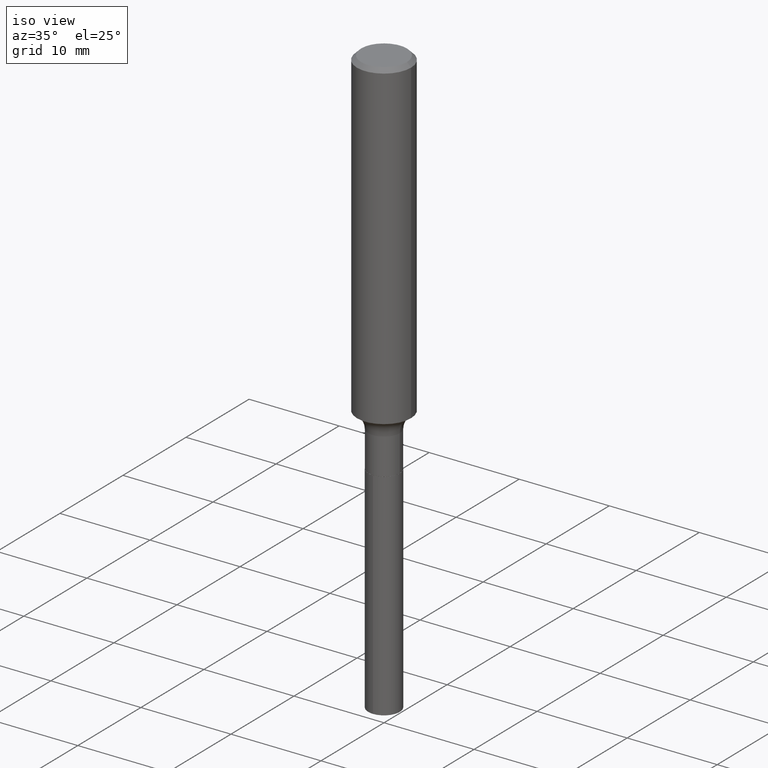
[diagram: clean part render]
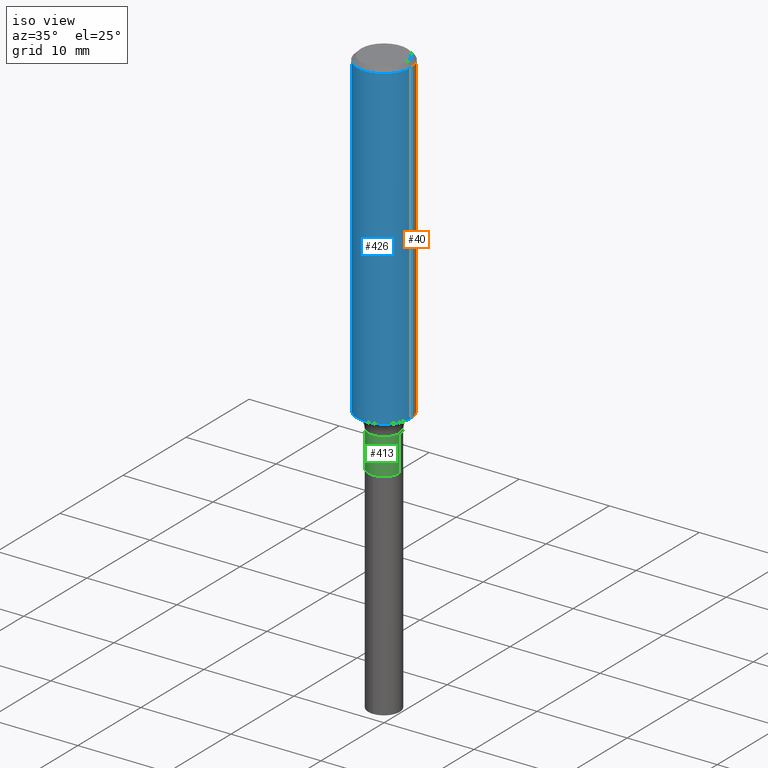
[diagram: same view with three faces highlighted in distinct colors, each labeled with its STEP entity id]
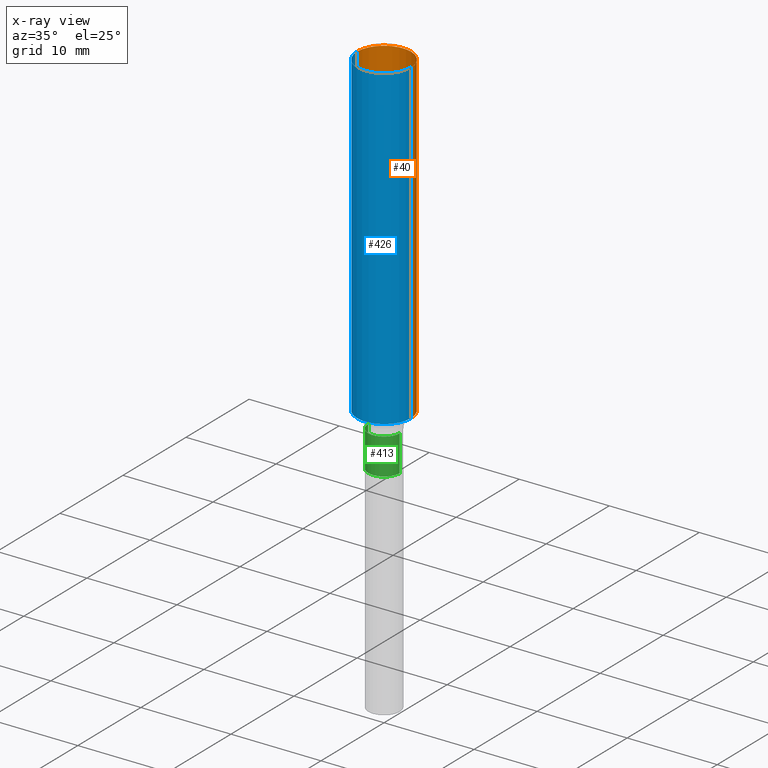
[diagram: x-ray of the same camera — body ghosted, the three highlighted faces saturated]
A machine part, iso view with three faces highlighted in distinct colors.
The next image is the same camera in x-ray (body ghosted, the three faces saturated) — at least one of them is partly hidden behind the body in this view.
Their STEP definitions:

[orange] entity #40 — the highlighted cylindrical surface (edge-blend (fillet) strip) has radius 2.9997 mm, axis along (-0, 0, 1).
#10 = CARTESIAN_POINT ( 'NONE',  ( -0.1181000000000000799, 8.391509709326788873E-16, -5.809262341591047988E-30 ) ) ;
#30 = ORIENTED_EDGE ( 'NONE', *, *, #75, .T. ) ;
#39 = EDGE_CURVE ( 'NONE', #52, #132, #120, .T. ) ;
#40 = ADVANCED_FACE ( 'NONE', ( #125 ), #344, .T. ) ;
#48 = EDGE_CURVE ( 'NONE', #160, #231, #391, .T. ) ;
#51 = VECTOR ( 'NONE', #54, 39.37007874015748143 ) ;
#52 = VERTEX_POINT ( 'NONE', #269 ) ;
#54 = DIRECTION ( 'NONE',  ( -2.445468806185136877E-29, 3.491481338843145188E-15, 1.000000000000000000 ) ) ;
#61 = EDGE_LOOP ( 'NONE', ( #30, #175, #359, #69 ) ) ;
#68 = VECTOR ( 'NONE', #113, 39.37007874015748143 ) ;
#69 = ORIENTED_EDGE ( 'NONE', *, *, #39, .F. ) ;
#75 = EDGE_CURVE ( 'NONE', #52, #160, #180, .T. ) ;
#79 = DIRECTION ( 'NONE',  ( -2.445468806185136597E-29, 3.491481338843145583E-15, 1.000000000000000000 ) ) ;
#85 = CARTESIAN_POINT ( 'NONE',  ( 0.000000000000000000, 0.000000000000000000, 0.000000000000000000 ) ) ;
#88 = DIRECTION ( 'NONE',  ( 1.000000000000000000, -6.982962677686270655E-15, 0.000000000000000000 ) ) ;
#103 = AXIS2_PLACEMENT_3D ( 'NONE', #221, #195, #88 ) ;
#113 = DIRECTION ( 'NONE',  ( -2.445468806185136877E-29, 3.491481338843145188E-15, 1.000000000000000000 ) ) ;
#120 = LINE ( 'NONE', #422, #68 ) ;
#125 = FACE_OUTER_BOUND ( 'NONE', #61, .T. ) ;
#132 = VERTEX_POINT ( 'NONE', #299 ) ;
#153 = AXIS2_PLACEMENT_3D ( 'NONE', #85, #79, #161 ) ;
#160 = VERTEX_POINT ( 'NONE', #401 ) ;
#161 = DIRECTION ( 'NONE',  ( 1.000000000000000000, -6.982962677686266711E-15, 4.876176775795936353E-29 ) ) ;
#175 = ORIENTED_EDGE ( 'NONE', *, *, #48, .T. ) ;
#180 = CIRCLE ( 'NONE', #103, 0.1181000000000001632 ) ;
#195 = DIRECTION ( 'NONE',  ( -2.445468806185136597E-29, 3.491481338843145583E-15, 1.000000000000000000 ) ) ;
#213 = CARTESIAN_POINT ( 'NONE',  ( 4.332147990156998495E-31, -6.185159191760674092E-17, -0.01771500000000011954 ) ) ;
#221 = CARTESIAN_POINT ( 'NONE',  ( 3.430532145968479544E-29, -4.897890719217663237E-15, -1.402811656109412830 ) ) ;
#231 = VERTEX_POINT ( 'NONE', #362 ) ;
#255 = DIRECTION ( 'NONE',  ( -2.445468806185136597E-29, 3.491481338843145583E-15, 1.000000000000000000 ) ) ;
#269 = CARTESIAN_POINT ( 'NONE',  ( 0.1181000000000002603, -5.722578611452413077E-15, -1.402811656109412830 ) ) ;
#299 = CARTESIAN_POINT ( 'NONE',  ( 0.1180999999999999966, -8.865394841523548556E-16, -0.01771500000000011954 ) ) ;
#325 = DIRECTION ( 'NONE',  ( 1.000000000000000000, -6.982962677686266711E-15, 0.000000000000000000 ) ) ;
#344 = CYLINDRICAL_SURFACE ( 'NONE', #153, 0.1181000000000000799 ) ;
#359 = ORIENTED_EDGE ( 'NONE', *, *, #420, .F. ) ;
#362 = CARTESIAN_POINT ( 'NONE',  ( -0.1180999999999999966, -1.640720184634955534E-15, -0.01771500000000011954 ) ) ;
#391 = LINE ( 'NONE', #10, #51 ) ;
#401 = CARTESIAN_POINT ( 'NONE',  ( -0.1181000000000002603, -4.058739748284982673E-15, -1.402811656109412830 ) ) ;
#405 = CIRCLE ( 'NONE', #421, 0.1180999999999999966 ) ;
#420 = EDGE_CURVE ( 'NONE', #132, #231, #405, .T. ) ;
#421 = AXIS2_PLACEMENT_3D ( 'NONE', #213, #255, #325 ) ;
#422 = CARTESIAN_POINT ( 'NONE',  ( 0.1181000000000000799, -8.246878922347486570E-16, 5.758764772215004644E-30 ) ) ;

[blue] entity #426 — the highlighted cylindrical surface (edge-blend (fillet) strip) has radius 2.9997 mm, axis along (-0, 0, 1).
#3 = DIRECTION ( 'NONE',  ( 1.000000000000000000, -6.982962677686266711E-15, 0.000000000000000000 ) ) ;
#10 = CARTESIAN_POINT ( 'NONE',  ( -0.1181000000000000799, 8.391509709326788873E-16, -5.809262341591047988E-30 ) ) ;
#39 = EDGE_CURVE ( 'NONE', #52, #132, #120, .T. ) ;
#44 = DIRECTION ( 'NONE',  ( -2.445468806185136597E-29, 3.491481338843145583E-15, 1.000000000000000000 ) ) ;
#48 = EDGE_CURVE ( 'NONE', #160, #231, #391, .T. ) ;
#51 = VECTOR ( 'NONE', #54, 39.37007874015748143 ) ;
#52 = VERTEX_POINT ( 'NONE', #269 ) ;
#54 = DIRECTION ( 'NONE',  ( -2.445468806185136877E-29, 3.491481338843145188E-15, 1.000000000000000000 ) ) ;
#68 = VECTOR ( 'NONE', #113, 39.37007874015748143 ) ;
#71 = CYLINDRICAL_SURFACE ( 'NONE', #92, 0.1181000000000000799 ) ;
#81 = ORIENTED_EDGE ( 'NONE', *, *, #123, .F. ) ;
#92 = AXIS2_PLACEMENT_3D ( 'NONE', #408, #410, #177 ) ;
#113 = DIRECTION ( 'NONE',  ( -2.445468806185136877E-29, 3.491481338843145188E-15, 1.000000000000000000 ) ) ;
#120 = LINE ( 'NONE', #422, #68 ) ;
#123 = EDGE_CURVE ( 'NONE', #231, #132, #411, .T. ) ;
#132 = VERTEX_POINT ( 'NONE', #299 ) ;
#149 = CARTESIAN_POINT ( 'NONE',  ( 4.332147990156998495E-31, -6.185159191760674092E-17, -0.01771500000000011954 ) ) ;
#160 = VERTEX_POINT ( 'NONE', #401 ) ;
#177 = DIRECTION ( 'NONE',  ( 1.000000000000000000, -6.982962677686266711E-15, 4.876176775795936353E-29 ) ) ;
#179 = FACE_OUTER_BOUND ( 'NONE', #480, .T. ) ;
#218 = CARTESIAN_POINT ( 'NONE',  ( 3.430532145968479544E-29, -4.897890719217663237E-15, -1.402811656109412830 ) ) ;
#231 = VERTEX_POINT ( 'NONE', #362 ) ;
#259 = DIRECTION ( 'NONE',  ( -2.445468806185136597E-29, 3.491481338843145583E-15, 1.000000000000000000 ) ) ;
#265 = CIRCLE ( 'NONE', #327, 0.1181000000000001632 ) ;
#269 = CARTESIAN_POINT ( 'NONE',  ( 0.1181000000000002603, -5.722578611452413077E-15, -1.402811656109412830 ) ) ;
#274 = ORIENTED_EDGE ( 'NONE', *, *, #370, .T. ) ;
#299 = CARTESIAN_POINT ( 'NONE',  ( 0.1180999999999999966, -8.865394841523548556E-16, -0.01771500000000011954 ) ) ;
#312 = ORIENTED_EDGE ( 'NONE', *, *, #39, .T. ) ;
#327 = AXIS2_PLACEMENT_3D ( 'NONE', #218, #259, #448 ) ;
#362 = CARTESIAN_POINT ( 'NONE',  ( -0.1180999999999999966, -1.640720184634955534E-15, -0.01771500000000011954 ) ) ;
#370 = EDGE_CURVE ( 'NONE', #160, #52, #265, .T. ) ;
#391 = LINE ( 'NONE', #10, #51 ) ;
#401 = CARTESIAN_POINT ( 'NONE',  ( -0.1181000000000002603, -4.058739748284982673E-15, -1.402811656109412830 ) ) ;
#408 = CARTESIAN_POINT ( 'NONE',  ( 0.000000000000000000, 0.000000000000000000, 0.000000000000000000 ) ) ;
#410 = DIRECTION ( 'NONE',  ( -2.445468806185136597E-29, 3.491481338843145583E-15, 1.000000000000000000 ) ) ;
#411 = CIRCLE ( 'NONE', #439, 0.1180999999999999966 ) ;
#417 = ORIENTED_EDGE ( 'NONE', *, *, #48, .F. ) ;
#422 = CARTESIAN_POINT ( 'NONE',  ( 0.1181000000000000799, -8.246878922347486570E-16, 5.758764772215004644E-30 ) ) ;
#426 = ADVANCED_FACE ( 'NONE', ( #179 ), #71, .T. ) ;
#439 = AXIS2_PLACEMENT_3D ( 'NONE', #149, #44, #3 ) ;
#448 = DIRECTION ( 'NONE',  ( 1.000000000000000000, -6.982962677686270655E-15, 0.000000000000000000 ) ) ;
#480 = EDGE_LOOP ( 'NONE', ( #417, #274, #312, #81 ) ) ;

[green] entity #413 — the highlighted cylindrical surface (edge-blend (fillet) strip) has radius 1.7501 mm, axis along (-0, 0, 1).
#1 = CIRCLE ( 'NONE', #396, 0.06890000000000000291 ) ;
#38 = DIRECTION ( 'NONE',  ( -2.445468806185136597E-29, 3.491481338843145583E-15, 1.000000000000000000 ) ) ;
#66 = CARTESIAN_POINT ( 'NONE',  ( 0.06890000000000000291, -6.183762599225093699E-15, -1.633299999999999974 ) ) ;
#73 = DIRECTION ( 'NONE',  ( 1.000000000000000000, -6.982962677686265922E-15, 0.000000000000000000 ) ) ;
#77 = CARTESIAN_POINT ( 'NONE',  ( 3.994184201142184223E-29, -5.702636470732509961E-15, -1.633299999999999974 ) ) ;
#105 = EDGE_CURVE ( 'NONE', #397, #279, #241, .T. ) ;
#107 = DIRECTION ( 'NONE',  ( -2.445468806185136597E-29, 3.491481338843145583E-15, 1.000000000000000000 ) ) ;
#114 = EDGE_LOOP ( 'NONE', ( #237, #197, #278, #443 ) ) ;
#140 = CARTESIAN_POINT ( 'NONE',  ( 0.000000000000000000, 0.000000000000000000, 0.000000000000000000 ) ) ;
#158 = DIRECTION ( 'NONE',  ( 1.000000000000000000, -6.982962677686267499E-15, 0.000000000000000000 ) ) ;
#166 = DIRECTION ( 'NONE',  ( -2.445468806185136877E-29, 3.491481338843145188E-15, 1.000000000000000000 ) ) ;
#167 = VECTOR ( 'NONE', #166, 39.37007874015748143 ) ;
#170 = DIRECTION ( 'NONE',  ( -2.445468806185136877E-29, 3.491481338843145188E-15, 1.000000000000000000 ) ) ;
#197 = ORIENTED_EDGE ( 'NONE', *, *, #352, .T. ) ;
#207 = VERTEX_POINT ( 'NONE', #66 ) ;
#212 = LINE ( 'NONE', #369, #456 ) ;
#237 = ORIENTED_EDGE ( 'NONE', *, *, #246, .F. ) ;
#241 = CIRCLE ( 'NONE', #249, 0.06889999999999998903 ) ;
#246 = EDGE_CURVE ( 'NONE', #427, #397, #317, .T. ) ;
#249 = AXIS2_PLACEMENT_3D ( 'NONE', #350, #380, #158 ) ;
#250 = AXIS2_PLACEMENT_3D ( 'NONE', #140, #107, #251 ) ;
#251 = DIRECTION ( 'NONE',  ( 1.000000000000000000, -6.982962677686265922E-15, 4.876176775795934672E-29 ) ) ;
#278 = ORIENTED_EDGE ( 'NONE', *, *, #451, .T. ) ;
#279 = VERTEX_POINT ( 'NONE', #366 ) ;
#317 = LINE ( 'NONE', #322, #167 ) ;
#322 = CARTESIAN_POINT ( 'NONE',  ( -0.06890000000000000291, 4.895639449387090487E-16, -3.389146277185630017E-30 ) ) ;
#350 = CARTESIAN_POINT ( 'NONE',  ( 3.607800129764931825E-29, -5.150982419195292745E-15, -1.475300000000000056 ) ) ;
#352 = EDGE_CURVE ( 'NONE', #427, #207, #1, .T. ) ;
#366 = CARTESIAN_POINT ( 'NONE',  ( 0.06889999999999998903, -5.632108547687876483E-15, -1.475300000000000056 ) ) ;
#369 = CARTESIAN_POINT ( 'NONE',  ( 0.06890000000000000291, -4.811261284925837385E-16, 3.359685798523399268E-30 ) ) ;
#371 = CYLINDRICAL_SURFACE ( 'NONE', #250, 0.06890000000000000291 ) ;
#378 = FACE_OUTER_BOUND ( 'NONE', #114, .T. ) ;
#380 = DIRECTION ( 'NONE',  ( -2.445468806185136597E-29, 3.491481338843145583E-15, 1.000000000000000000 ) ) ;
#396 = AXIS2_PLACEMENT_3D ( 'NONE', #77, #38, #73 ) ;
#397 = VERTEX_POINT ( 'NONE', #450 ) ;
#413 = ADVANCED_FACE ( 'NONE', ( #378 ), #371, .T. ) ;
#427 = VERTEX_POINT ( 'NONE', #446 ) ;
#443 = ORIENTED_EDGE ( 'NONE', *, *, #105, .F. ) ;
#446 = CARTESIAN_POINT ( 'NONE',  ( -0.06890000000000001679, -4.937245500025191811E-15, -1.633299999999999974 ) ) ;
#450 = CARTESIAN_POINT ( 'NONE',  ( -0.06889999999999998903, -4.937245500025191811E-15, -1.475300000000000056 ) ) ;
#451 = EDGE_CURVE ( 'NONE', #207, #279, #212, .T. ) ;
#456 = VECTOR ( 'NONE', #170, 39.37007874015748143 ) ;